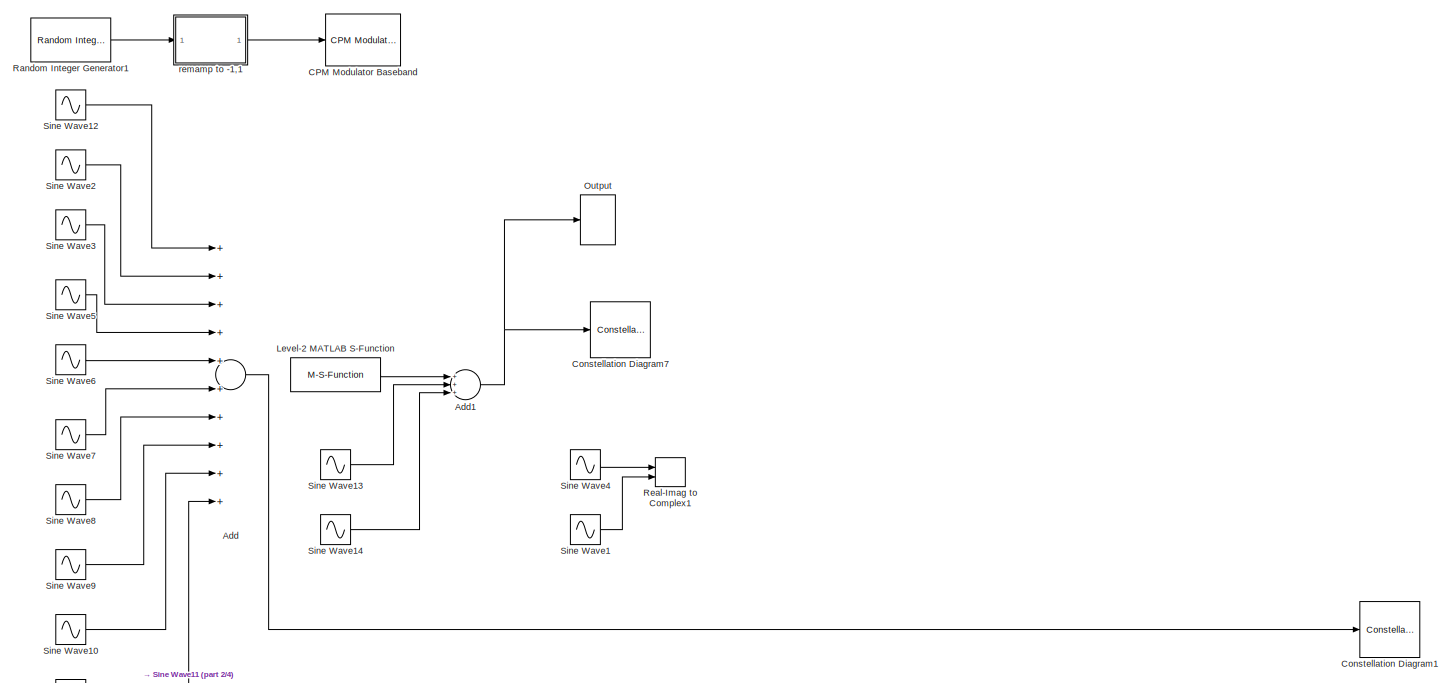
[diagram: root canvas - part 1/4, top center region]
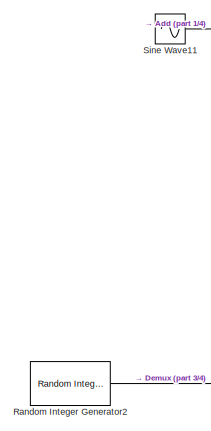
[diagram: root canvas - part 2/4, middle left region]
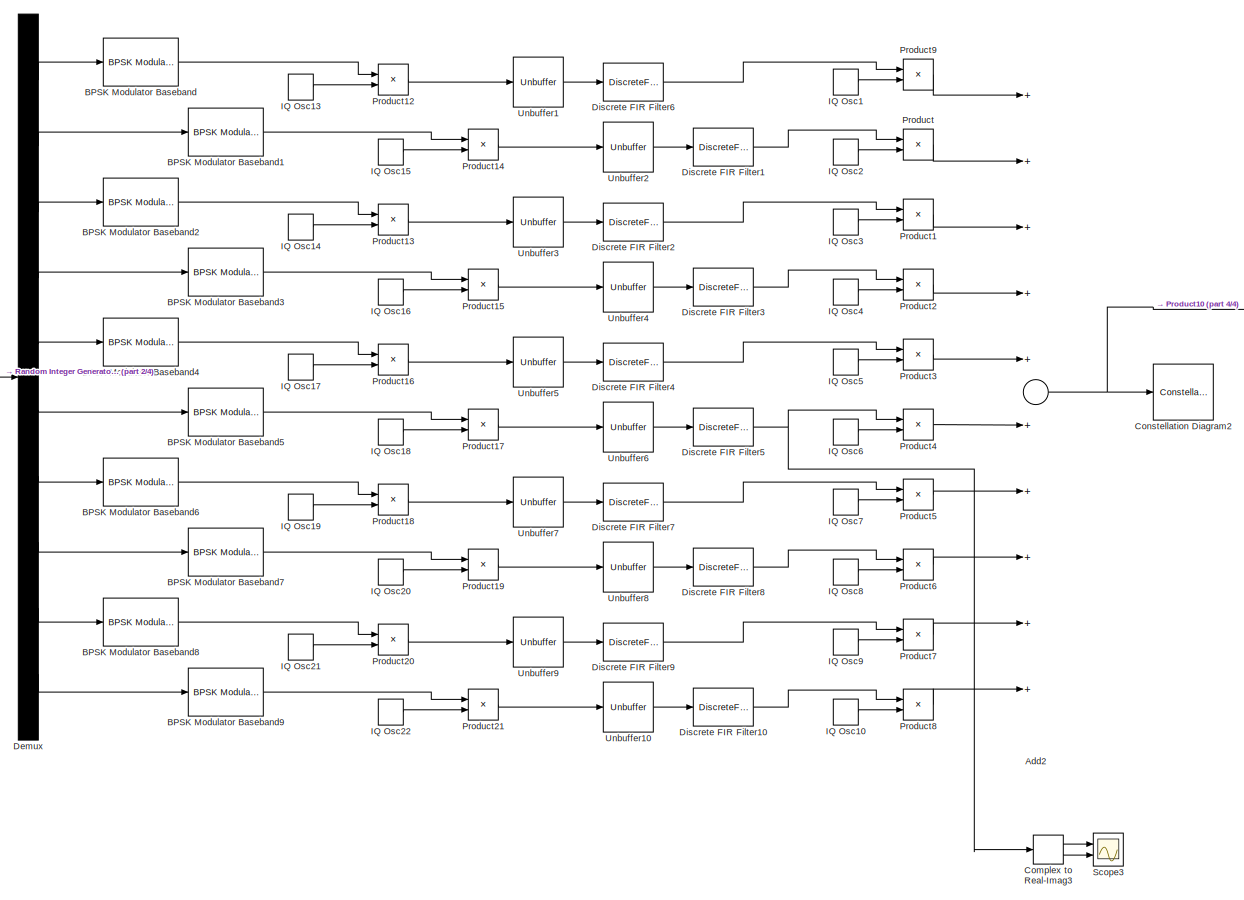
[diagram: root canvas - part 3/4, bottom center region]
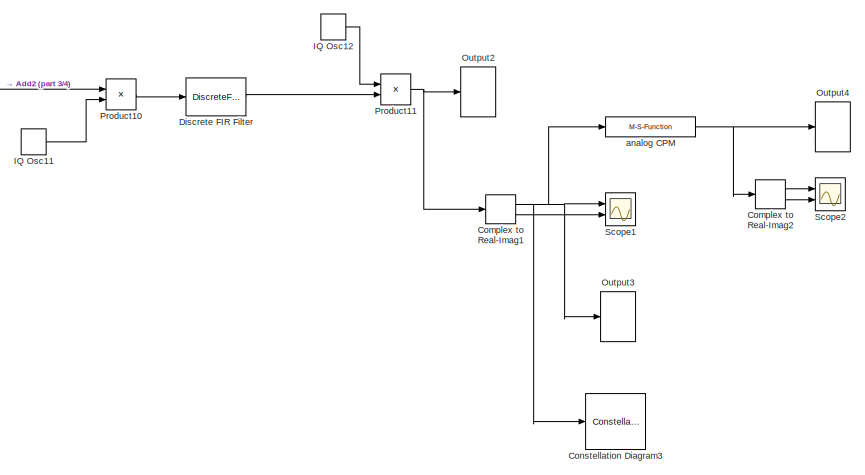
[diagram: root canvas - part 4/4, bottom right region]
MODEL slx_9e39d35eb57d
KIND model
BLOCK [Sum] Add
  InputSameDT = off
  Inputs = ++++++++++
  OutDataTypeStr = Inherit: Inherit via internal rule
  Ports = [10, 1]
  SaturateOnIntegerOverflow = off
BLOCK [Sum] Add1
  Commented = on
  InputSameDT = off
  Inputs = +++
  OutDataTypeStr = Inherit: Inherit via internal rule
  Ports = [3, 1]
  SaturateOnIntegerOverflow = off
BLOCK [Sum] Add2
  InputSameDT = off
  Inputs = ++++++++++
  OutDataTypeStr = Inherit: Inherit via internal rule
  Ports = [10, 1]
  SaturateOnIntegerOverflow = off
BLOCK [Reference] BPSK Modulator Baseband  REF=commdigbbndpm3/BPSK
Modulator
Baseband
  Ph = 0
  Ports = [1, 1]
  SourceBlock = commdigbbndpm3/BPSK\nModulator\nBaseband
  SourceType = BPSK Modulator Baseband
  outDtype = double
  outFracLen = 15
  outFracLenMode = Best precision
  outUDDataType = sfix(16)
  outWordLen = 16
BLOCK [Reference] BPSK Modulator Baseband1  REF=commdigbbndpm3/BPSK
Modulator
Baseband
  Ph = 0
  Ports = [1, 1]
  SourceBlock = commdigbbndpm3/BPSK\nModulator\nBaseband
  SourceType = BPSK Modulator Baseband
  outDtype = double
  outFracLen = 15
  outFracLenMode = Best precision
  outUDDataType = sfix(16)
  outWordLen = 16
BLOCK [Reference] BPSK Modulator Baseband2  REF=commdigbbndpm3/BPSK
Modulator
Baseband
  Ph = 0
  Ports = [1, 1]
  SourceBlock = commdigbbndpm3/BPSK\nModulator\nBaseband
  SourceType = BPSK Modulator Baseband
  outDtype = double
  outFracLen = 15
  outFracLenMode = Best precision
  outUDDataType = sfix(16)
  outWordLen = 16
BLOCK [Reference] BPSK Modulator Baseband3  REF=commdigbbndpm3/BPSK
Modulator
Baseband
  Ph = 0
  Ports = [1, 1]
  SourceBlock = commdigbbndpm3/BPSK\nModulator\nBaseband
  SourceType = BPSK Modulator Baseband
  outDtype = double
  outFracLen = 15
  outFracLenMode = Best precision
  outUDDataType = sfix(16)
  outWordLen = 16
BLOCK [Reference] BPSK Modulator Baseband4  REF=commdigbbndpm3/BPSK
Modulator
Baseband
  Ph = 0
  Ports = [1, 1]
  SourceBlock = commdigbbndpm3/BPSK\nModulator\nBaseband
  SourceType = BPSK Modulator Baseband
  outDtype = double
  outFracLen = 15
  outFracLenMode = Best precision
  outUDDataType = sfix(16)
  outWordLen = 16
BLOCK [Reference] BPSK Modulator Baseband5  REF=commdigbbndpm3/BPSK
Modulator
Baseband
  Ph = 0
  Ports = [1, 1]
  SourceBlock = commdigbbndpm3/BPSK\nModulator\nBaseband
  SourceType = BPSK Modulator Baseband
  outDtype = double
  outFracLen = 15
  outFracLenMode = Best precision
  outUDDataType = sfix(16)
  outWordLen = 16
BLOCK [Reference] BPSK Modulator Baseband6  REF=commdigbbndpm3/BPSK
Modulator
Baseband
  Ph = 0
  Ports = [1, 1]
  SourceBlock = commdigbbndpm3/BPSK\nModulator\nBaseband
  SourceType = BPSK Modulator Baseband
  outDtype = double
  outFracLen = 15
  outFracLenMode = Best precision
  outUDDataType = sfix(16)
  outWordLen = 16
BLOCK [Reference] BPSK Modulator Baseband7  REF=commdigbbndpm3/BPSK
Modulator
Baseband
  Ph = 0
  Ports = [1, 1]
  SourceBlock = commdigbbndpm3/BPSK\nModulator\nBaseband
  SourceType = BPSK Modulator Baseband
  outDtype = double
  outFracLen = 15
  outFracLenMode = Best precision
  outUDDataType = sfix(16)
  outWordLen = 16
BLOCK [Reference] BPSK Modulator Baseband8  REF=commdigbbndpm3/BPSK
Modulator
Baseband
  Ph = 0
  Ports = [1, 1]
  SourceBlock = commdigbbndpm3/BPSK\nModulator\nBaseband
  SourceType = BPSK Modulator Baseband
  outDtype = double
  outFracLen = 15
  outFracLenMode = Best precision
  outUDDataType = sfix(16)
  outWordLen = 16
BLOCK [Reference] BPSK Modulator Baseband9  REF=commdigbbndpm3/BPSK
Modulator
Baseband
  Ph = 0
  Ports = [1, 1]
  SourceBlock = commdigbbndpm3/BPSK\nModulator\nBaseband
  SourceType = BPSK Modulator Baseband
  outDtype = double
  outFracLen = 15
  outFracLenMode = Best precision
  outUDDataType = sfix(16)
  outWordLen = 16
BLOCK [Reference] CPM Modulator Baseband  REF=commdigbbndcpm2/CPM
Modulator
Baseband
  BT = 0.3
  Commented = on
  Mnum = 4
  Ports = [1, 1]
  RateOptions = Enforce single-rate processing
  SourceBlock = commdigbbndcpm2/CPM\nModulator\nBaseband
  SourceType = CPM Modulator Baseband
  UserDataPersistent = on
  inputType = Integer
  mainLobePulseLength = 1
  mappingType = Binary
  modIdx = 0.5
  outDataType = double
  phaseOffset = 0
  preHistory = 1
  pulseLength = 1
  pulseShape = Rectangular
  rollOff = 0.2
  samplesPerSymbol = 8
BLOCK [ComplexToRealImag] Complex to Real-Imag1
  Ports = [1, 2]
BLOCK [ComplexToRealImag] Complex to Real-Imag2
  Ports = [1, 2]
BLOCK [ComplexToRealImag] Complex to Real-Imag3
  Ports = [1, 2]
BLOCK [ConstellationDiagram] Constellation Diagram1
  Ports = [1]
  ScopeSpecificationString = comm.scopes.ConstellationDiagramBlockCfg('CurrentConfiguration', extmgr.ConfigurationSet(extmgr.Configuration('Core','General UI',true),extmgr.Configuration('Core','Source UI',true),extmgr.Configuration('Sources','WiredSimulink',true),extmgr.Configuration('Sources','Simulink',false),extmgr.Configuration('Sources','File',false),extmgr.Configuration('Sources','Workspace',false),extmgr.Configuration(...<+1764ch>  <repeated x4 — deduplicated; at blocks: Constellation Diagram1, Constellation Diagram2, Constellation Diagram3, Constellation Diagram7>
BLOCK [ConstellationDiagram] Constellation Diagram2
  Commented = on
  Ports = [1]
BLOCK [ConstellationDiagram] Constellation Diagram3
  Ports = [1]
BLOCK [ConstellationDiagram] Constellation Diagram7
  Commented = on
  Ports = [1]
BLOCK [Demux] Demux
  DisplayOption = bar
  Outputs = 10
  Ports = [1, 10]
BLOCK [DiscreteFir] Discrete FIR Filter
  Coefficients = 0.25*sinc(0.25*(-100:100))
  Ports = [1, 1]
BLOCK [DiscreteFir] Discrete FIR Filter1
  Coefficients = 0.05*sinc(0.05*(-100:100))
  Ports = [1, 1]
BLOCK [DiscreteFir] Discrete FIR Filter10
  Coefficients = 0.05*sinc(0.05*(-100:100))
  Ports = [1, 1]
BLOCK [DiscreteFir] Discrete FIR Filter2
  Coefficients = 0.05*sinc(0.05*(-100:100))
  Ports = [1, 1]
BLOCK [DiscreteFir] Discrete FIR Filter3
  Coefficients = 0.05*sinc(0.05*(-100:100))
  Ports = [1, 1]
BLOCK [DiscreteFir] Discrete FIR Filter4
  Coefficients = 0.05*sinc(0.05*(-100:100))
  Ports = [1, 1]
BLOCK [DiscreteFir] Discrete FIR Filter5
  Coefficients = 0.05*sinc(0.05*(-100:100))
  Ports = [1, 1]
BLOCK [DiscreteFir] Discrete FIR Filter6
  Coefficients = 0.05*sinc(0.05*(-100:100))
  Ports = [1, 1]
BLOCK [DiscreteFir] Discrete FIR Filter7
  Coefficients = 0.05*sinc(0.05*(-100:100))
  Ports = [1, 1]
BLOCK [DiscreteFir] Discrete FIR Filter8
  Coefficients = 0.05*sinc(0.05*(-100:100))
  Ports = [1, 1]
BLOCK [DiscreteFir] Discrete FIR Filter9
  Coefficients = 0.05*sinc(0.05*(-100:100))
  Ports = [1, 1]
BLOCK [M-S-Function] IQ Osc1
  FunctionName = complex_source
  Parameters = Freq, SampleTime
  Ports = [0, 1]
BLOCK [M-S-Function] IQ Osc10
  FunctionName = complex_source
  Parameters = Freq, SampleTime
  Ports = [0, 1]
BLOCK [M-S-Function] IQ Osc11
  FunctionName = complex_source
  Parameters = Freq, SampleTime
  Ports = [0, 1]
BLOCK [M-S-Function] IQ Osc12
  FunctionName = complex_source
  Parameters = Freq, SampleTime
  Ports = [0, 1]
BLOCK [M-S-Function] IQ Osc13
  FunctionName = complex_source
  Parameters = Freq, SampleTime
  Ports = [0, 1]
BLOCK [M-S-Function] IQ Osc14
  FunctionName = complex_source
  Parameters = Freq, SampleTime
  Ports = [0, 1]
BLOCK [M-S-Function] IQ Osc15
  FunctionName = complex_source
  Parameters = Freq, SampleTime
  Ports = [0, 1]
BLOCK [M-S-Function] IQ Osc16
  FunctionName = complex_source
  Parameters = Freq, SampleTime
  Ports = [0, 1]
BLOCK [M-S-Function] IQ Osc17
  FunctionName = complex_source
  Parameters = Freq, SampleTime
  Ports = [0, 1]
BLOCK [M-S-Function] IQ Osc18
  FunctionName = complex_source
  Parameters = Freq, SampleTime
  Ports = [0, 1]
BLOCK [M-S-Function] IQ Osc19
  FunctionName = complex_source
  Parameters = Freq, SampleTime
  Ports = [0, 1]
BLOCK [M-S-Function] IQ Osc2
  FunctionName = complex_source
  Parameters = Freq, SampleTime
  Ports = [0, 1]
BLOCK [M-S-Function] IQ Osc20
  FunctionName = complex_source
  Parameters = Freq, SampleTime
  Ports = [0, 1]
BLOCK [M-S-Function] IQ Osc21
  FunctionName = complex_source
  Parameters = Freq, SampleTime
  Ports = [0, 1]
BLOCK [M-S-Function] IQ Osc22
  FunctionName = complex_source
  Parameters = Freq, SampleTime
  Ports = [0, 1]
BLOCK [M-S-Function] IQ Osc3
  FunctionName = complex_source
  Parameters = Freq, SampleTime
  Ports = [0, 1]
BLOCK [M-S-Function] IQ Osc4
  FunctionName = complex_source
  Parameters = Freq, SampleTime
  Ports = [0, 1]
BLOCK [M-S-Function] IQ Osc5
  FunctionName = complex_source
  Parameters = Freq, SampleTime
  Ports = [0, 1]
BLOCK [M-S-Function] IQ Osc6
  FunctionName = complex_source
  Parameters = Freq, SampleTime
  Ports = [0, 1]
BLOCK [M-S-Function] IQ Osc7
  FunctionName = complex_source
  Parameters = Freq, SampleTime
  Ports = [0, 1]
BLOCK [M-S-Function] IQ Osc8
  FunctionName = complex_source
  Parameters = Freq, SampleTime
  Ports = [0, 1]
BLOCK [M-S-Function] IQ Osc9
  FunctionName = complex_source
  Parameters = Freq, SampleTime
  Ports = [0, 1]
BLOCK [M-S-Function] Level-2 MATLAB S-Function
  Commented = on
  FunctionName = mr_cpm_mod1
  Ports = [1, 1]
BLOCK [SpectrumAnalyzer] Output
  Commented = on
  Ports = [1]
  ScopeSpecificationString = spbscopes.SpectrumAnalyzerBlockCfg('CurrentConfiguration', extmgr.ConfigurationSet(extmgr.Configuration('Core','General UI',true,'DisplayFullSourceName',true,'FigureColor',[0.941176470588235 0.941176470588235 0.941176470588235]),extmgr.Configuration('Core','Source UI',true),extmgr.Configuration('Sources','WiredSimulink',true),extmgr.Configuration('Sources','Simulink',false),extmgr.Configuration('S...<+7397ch>
BLOCK [SpectrumAnalyzer] Output2
  Ports = [1]
  ScopeSpecificationString = spbscopes.SpectrumAnalyzerBlockCfg('CurrentConfiguration', extmgr.ConfigurationSet(extmgr.Configuration('Core','General UI',true,'DisplayFullSourceName',true,'FigureColor',[0.941176470588235 0.941176470588235 0.941176470588235]),extmgr.Configuration('Core','Source UI',true),extmgr.Configuration('Sources','WiredSimulink',true),extmgr.Configuration('Sources','Simulink',false),extmgr.Configuration('S...<+7408ch>
BLOCK [SpectrumAnalyzer] Output3
  Commented = on
  Ports = [1]
  ScopeSpecificationString = spbscopes.SpectrumAnalyzerBlockCfg('CurrentConfiguration', extmgr.ConfigurationSet(extmgr.Configuration('Core','General UI',true,'DisplayFullSourceName',true,'FigureColor',[0.941176470588235 0.941176470588235 0.941176470588235]),extmgr.Configuration('Core','Source UI',true),extmgr.Configuration('Sources','WiredSimulink',true),extmgr.Configuration('Sources','Simulink',false),extmgr.Configuration('S...<+7410ch>
BLOCK [SpectrumAnalyzer] Output4
  Ports = [1]
  ScopeSpecificationString = spbscopes.SpectrumAnalyzerBlockCfg('CurrentConfiguration', extmgr.ConfigurationSet(extmgr.Configuration('Core','General UI',true,'DisplayFullSourceName',true,'FigureColor',[0.941176470588235 0.941176470588235 0.941176470588235]),extmgr.Configuration('Core','Source UI',true),extmgr.Configuration('Sources','WiredSimulink',true),extmgr.Configuration('Sources','Simulink',false),extmgr.Configuration('S...<+7437ch>
BLOCK [Product] Product
  InputSameDT = off
  OutDataTypeStr = Inherit: Inherit via internal rule
  Ports = [2, 1]
  RndMeth = Floor
  SaturateOnIntegerOverflow = off
BLOCK [Product] Product1
  InputSameDT = off
  OutDataTypeStr = Inherit: Inherit via internal rule
  Ports = [2, 1]
  RndMeth = Floor
  SaturateOnIntegerOverflow = off
BLOCK [Product] Product10
  InputSameDT = off
  OutDataTypeStr = Inherit: Inherit via internal rule
  Ports = [2, 1]
  RndMeth = Floor
  SaturateOnIntegerOverflow = off
BLOCK [Product] Product11
  InputSameDT = off
  OutDataTypeStr = Inherit: Inherit via internal rule
  Ports = [2, 1]
  RndMeth = Floor
  SaturateOnIntegerOverflow = off
BLOCK [Product] Product12
  InputSameDT = off
  OutDataTypeStr = Inherit: Inherit via internal rule
  Ports = [2, 1]
  RndMeth = Floor
  SaturateOnIntegerOverflow = off
BLOCK [Product] Product13
  InputSameDT = off
  OutDataTypeStr = Inherit: Inherit via internal rule
  Ports = [2, 1]
  RndMeth = Floor
  SaturateOnIntegerOverflow = off
BLOCK [Product] Product14
  InputSameDT = off
  OutDataTypeStr = Inherit: Inherit via internal rule
  Ports = [2, 1]
  RndMeth = Floor
  SaturateOnIntegerOverflow = off
BLOCK [Product] Product15
  InputSameDT = off
  OutDataTypeStr = Inherit: Inherit via internal rule
  Ports = [2, 1]
  RndMeth = Floor
  SaturateOnIntegerOverflow = off
BLOCK [Product] Product16
  InputSameDT = off
  OutDataTypeStr = Inherit: Inherit via internal rule
  Ports = [2, 1]
  RndMeth = Floor
  SaturateOnIntegerOverflow = off
BLOCK [Product] Product17
  InputSameDT = off
  OutDataTypeStr = Inherit: Inherit via internal rule
  Ports = [2, 1]
  RndMeth = Floor
  SaturateOnIntegerOverflow = off
BLOCK [Product] Product18
  InputSameDT = off
  OutDataTypeStr = Inherit: Inherit via internal rule
  Ports = [2, 1]
  RndMeth = Floor
  SaturateOnIntegerOverflow = off
BLOCK [Product] Product19
  InputSameDT = off
  OutDataTypeStr = Inherit: Inherit via internal rule
  Ports = [2, 1]
  RndMeth = Floor
  SaturateOnIntegerOverflow = off
BLOCK [Product] Product2
  InputSameDT = off
  OutDataTypeStr = Inherit: Inherit via internal rule
  Ports = [2, 1]
  RndMeth = Floor
  SaturateOnIntegerOverflow = off
BLOCK [Product] Product20
  InputSameDT = off
  OutDataTypeStr = Inherit: Inherit via internal rule
  Ports = [2, 1]
  RndMeth = Floor
  SaturateOnIntegerOverflow = off
BLOCK [Product] Product21
  InputSameDT = off
  OutDataTypeStr = Inherit: Inherit via internal rule
  Ports = [2, 1]
  RndMeth = Floor
  SaturateOnIntegerOverflow = off
BLOCK [Product] Product3
  InputSameDT = off
  OutDataTypeStr = Inherit: Inherit via internal rule
  Ports = [2, 1]
  RndMeth = Floor
  SaturateOnIntegerOverflow = off
BLOCK [Product] Product4
  InputSameDT = off
  OutDataTypeStr = Inherit: Inherit via internal rule
  Ports = [2, 1]
  RndMeth = Floor
  SaturateOnIntegerOverflow = off
BLOCK [Product] Product5
  InputSameDT = off
  OutDataTypeStr = Inherit: Inherit via internal rule
  Ports = [2, 1]
  RndMeth = Floor
  SaturateOnIntegerOverflow = off
BLOCK [Product] Product6
  InputSameDT = off
  OutDataTypeStr = Inherit: Inherit via internal rule
  Ports = [2, 1]
  RndMeth = Floor
  SaturateOnIntegerOverflow = off
BLOCK [Product] Product7
  InputSameDT = off
  OutDataTypeStr = Inherit: Inherit via internal rule
  Ports = [2, 1]
  RndMeth = Floor
  SaturateOnIntegerOverflow = off
BLOCK [Product] Product8
  InputSameDT = off
  OutDataTypeStr = Inherit: Inherit via internal rule
  Ports = [2, 1]
  RndMeth = Floor
  SaturateOnIntegerOverflow = off
BLOCK [Product] Product9
  InputSameDT = off
  OutDataTypeStr = Inherit: Inherit via internal rule
  Ports = [2, 1]
  RndMeth = Floor
  SaturateOnIntegerOverflow = off
BLOCK [Reference] Random Integer Generator1  REF=commrandsrc2/Random Integer
Generator
  Commented = on
  Ports = [0, 1]
  SourceBlock = commrandsrc2/Random Integer\nGenerator
  SourceType = Random Integer Generator
  Ts = 1/(10000)
  frameBased = off
  mul = 2
  orient = off
  outDataType = double
  sampPerFrame = 1024
  seed = 42
BLOCK [Reference] Random Integer Generator2  REF=commrandsrc2/Random Integer
Generator
  Ports = [0, 1]
  SourceBlock = commrandsrc2/Random Integer\nGenerator
  SourceType = Random Integer Generator
  Ts = 1/(10000)
  frameBased = on
  mul = 2
  orient = off
  outDataType = double
  sampPerFrame = 10
  seed = 42
BLOCK [RealImagToComplex] Real-Imag to Complex1
  Commented = on
  Ports = [2, 1]
BLOCK [Scope] Scope1
  Floating = off
  NumInputPorts = 2
  Ports = [2]
  SaveName = ScopeData1
  ShowLegends = off
  YMax = 5~5
  YMin = -5~-5
  ZoomMode = xonly
BLOCK [Scope] Scope2
  Floating = off
  NumInputPorts = 2
  Ports = [2]
  SaveName = ScopeData2
  ShowLegends = off
  YMax = 5~5
  YMin = -5~-5
  ZoomMode = xonly
BLOCK [Scope] Scope3
  Floating = off
  NumInputPorts = 2
  Ports = [2]
  ShowLegends = off
  YMax = 5~5
  YMin = -5~-5
  ZoomMode = xonly
BLOCK [Sin] Sine Wave1
  Commented = on
  Frequency = 12.801*2*pi*1000
  Phase = -pi/2
  Ports = [0, 1]
  SampleTime = 1/128000
BLOCK [Sin] Sine Wave10
  Amplitude = 0.1
  Frequency = 98*2*pi
  Ports = [0, 1]
  SampleTime = 1/128000
BLOCK [Sin] Sine Wave11
  Amplitude = 0.1
  Frequency = 99*2*pi
  Ports = [0, 1]
  SampleTime = 1/128000
BLOCK [Sin] Sine Wave12
  Amplitude = 0.1
  Frequency = 100*2*pi
  Ports = [0, 1]
  SampleTime = 1/128000
BLOCK [Sin] Sine Wave13
  Commented = on
  Frequency = 10*2*pi
  Ports = [0, 1]
  SampleTime = 1/128000
BLOCK [Sin] Sine Wave14
  Commented = on
  Frequency = 20*2*pi
  Ports = [0, 1]
  SampleTime = 1/128000
BLOCK [Sin] Sine Wave2
  Amplitude = 0.1
  Frequency = 91*2*pi
  Ports = [0, 1]
  SampleTime = 1/128000
BLOCK [Sin] Sine Wave3
  Amplitude = 0.1
  Frequency = 92*2*pi
  Ports = [0, 1]
  SampleTime = 1/128000
BLOCK [Sin] Sine Wave4
  Commented = on
  Frequency = 12.801*2*pi*1000
  Ports = [0, 1]
  SampleTime = 1/128000
BLOCK [Sin] Sine Wave5
  Amplitude = 0.1
  Frequency = 93*2*pi
  Ports = [0, 1]
  SampleTime = 1/128000
BLOCK [Sin] Sine Wave6
  Amplitude = 0.1
  Frequency = 94*2*pi
  Ports = [0, 1]
  SampleTime = 1/128000
BLOCK [Sin] Sine Wave7
  Amplitude = 0.1
  Frequency = 95*2*pi
  Ports = [0, 1]
  SampleTime = 1/128000
BLOCK [Sin] Sine Wave8
  Amplitude = 0.1
  Frequency = 96*2*pi
  Ports = [0, 1]
  SampleTime = 1/128000
BLOCK [Sin] Sine Wave9
  Amplitude = 0.1
  Frequency = 97*2*pi
  Ports = [0, 1]
  SampleTime = 1/128000
BLOCK [Unbuffer] Unbuffer1
  Ports = [1, 1]
  SampleBasedProcessing = Same as frame based
BLOCK [Unbuffer] Unbuffer10
  Ports = [1, 1]
  SampleBasedProcessing = Same as frame based
BLOCK [Unbuffer] Unbuffer2
  Ports = [1, 1]
  SampleBasedProcessing = Same as frame based
BLOCK [Unbuffer] Unbuffer3
  Ports = [1, 1]
  SampleBasedProcessing = Same as frame based
BLOCK [Unbuffer] Unbuffer4
  Ports = [1, 1]
  SampleBasedProcessing = Same as frame based
BLOCK [Unbuffer] Unbuffer5
  Ports = [1, 1]
  SampleBasedProcessing = Same as frame based
BLOCK [Unbuffer] Unbuffer6
  Ports = [1, 1]
  SampleBasedProcessing = Same as frame based
BLOCK [Unbuffer] Unbuffer7
  Ports = [1, 1]
  SampleBasedProcessing = Same as frame based
BLOCK [Unbuffer] Unbuffer8
  Ports = [1, 1]
  SampleBasedProcessing = Same as frame based
BLOCK [Unbuffer] Unbuffer9
  Ports = [1, 1]
  SampleBasedProcessing = Same as frame based
BLOCK [M-S-Function] analog CPM
  FunctionName = mr_cpm_mod1
  Ports = [1, 1]
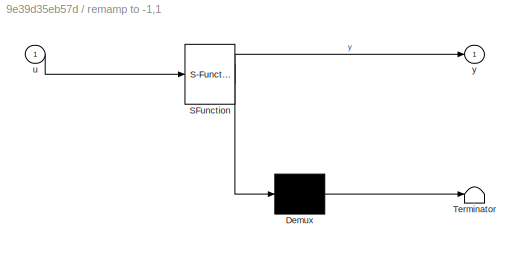
BLOCK [SubSystem] remamp to -1,1
  Commented = on
  ErrorFcn = Stateflow.Translate.translate
  PermitHierarchicalResolution = ExplicitOnly
  Ports = [1, 1]
  RequestExecContextInheritance = off
  SFBlockType = MATLAB Function
  TreatAsAtomicUnit = on
BLOCK [Demux] remamp to -1,1/ Demux 
  Outputs = 1
  Ports = [1, 1]
BLOCK [S-Function] remamp to -1,1/ SFunction 
  EnableBusSupport = on
  FunctionName = sf_sfun
  PortCounts = [1 2]
  Ports = [1, 2]
  Tag = Stateflow S-Function mr_cpm_test1 2
BLOCK [Terminator] remamp to -1,1/ Terminator 
BLOCK [Inport] remamp to -1,1/u
  IconDisplay = Port number
BLOCK [Outport] remamp to -1,1/y
  IconDisplay = Port number
NET Add1:1 -> Constellation Diagram7:1, Output:1
NET Add2:1 -> Constellation Diagram2:1, Product10:1
LINE Add:1 -> Constellation Diagram1:1
LINE BPSK Modulator Baseband1:1 -> Product14:1
LINE BPSK Modulator Baseband2:1 -> Product13:1
LINE BPSK Modulator Baseband3:1 -> Product15:1
LINE BPSK Modulator Baseband4:1 -> Product16:1
LINE BPSK Modulator Baseband5:1 -> Product17:1
LINE BPSK Modulator Baseband6:1 -> Product18:1
LINE BPSK Modulator Baseband7:1 -> Product19:1
LINE BPSK Modulator Baseband8:1 -> Product20:1
LINE BPSK Modulator Baseband9:1 -> Product21:1
LINE BPSK Modulator Baseband:1 -> Product12:1
NET Complex to Real-Imag1:1 -> Constellation Diagram3:1, Output3:1, Scope1:1, analog CPM:1
LINE Complex to Real-Imag1:2 -> Scope1:2
LINE Complex to Real-Imag2:1 -> Scope2:1
LINE Complex to Real-Imag2:2 -> Scope2:2
LINE Complex to Real-Imag3:1 -> Scope3:1
LINE Complex to Real-Imag3:2 -> Scope3:2
LINE Demux:1 -> BPSK Modulator Baseband:1
LINE Demux:10 -> BPSK Modulator Baseband9:1
LINE Demux:2 -> BPSK Modulator Baseband1:1
LINE Demux:3 -> BPSK Modulator Baseband2:1
LINE Demux:4 -> BPSK Modulator Baseband3:1
LINE Demux:5 -> BPSK Modulator Baseband4:1
LINE Demux:6 -> BPSK Modulator Baseband5:1
LINE Demux:7 -> BPSK Modulator Baseband6:1
LINE Demux:8 -> BPSK Modulator Baseband7:1
LINE Demux:9 -> BPSK Modulator Baseband8:1
LINE Discrete FIR Filter10:1 -> Product8:1
LINE Discrete FIR Filter1:1 -> Product:1
LINE Discrete FIR Filter2:1 -> Product1:1
LINE Discrete FIR Filter3:1 -> Product2:1
LINE Discrete FIR Filter4:1 -> Product3:1
NET Discrete FIR Filter5:1 -> Complex to Real-Imag3:1, Product4:1
LINE Discrete FIR Filter6:1 -> Product9:1
LINE Discrete FIR Filter7:1 -> Product5:1
LINE Discrete FIR Filter8:1 -> Product6:1
LINE Discrete FIR Filter9:1 -> Product7:1
LINE Discrete FIR Filter:1 -> Product11:2
LINE IQ Osc10:1 -> Product8:2
LINE IQ Osc11:1 -> Product10:2
LINE IQ Osc12:1 -> Product11:1
LINE IQ Osc13:1 -> Product12:2
LINE IQ Osc14:1 -> Product13:2
LINE IQ Osc15:1 -> Product14:2
LINE IQ Osc16:1 -> Product15:2
LINE IQ Osc17:1 -> Product16:2
LINE IQ Osc18:1 -> Product17:2
LINE IQ Osc19:1 -> Product18:2
LINE IQ Osc1:1 -> Product9:2
LINE IQ Osc20:1 -> Product19:2
LINE IQ Osc21:1 -> Product20:2
LINE IQ Osc22:1 -> Product21:2
LINE IQ Osc2:1 -> Product:2
LINE IQ Osc3:1 -> Product1:2
LINE IQ Osc4:1 -> Product2:2
LINE IQ Osc5:1 -> Product3:2
LINE IQ Osc6:1 -> Product4:2
LINE IQ Osc7:1 -> Product5:2
LINE IQ Osc8:1 -> Product6:2
LINE IQ Osc9:1 -> Product7:2
LINE Level-2 MATLAB S-Function:1 -> Add1:1
LINE Product10:1 -> Discrete FIR Filter:1
NET Product11:1 -> Complex to Real-Imag1:1, Output2:1
LINE Product12:1 -> Unbuffer1:1
LINE Product13:1 -> Unbuffer3:1
LINE Product14:1 -> Unbuffer2:1
LINE Product15:1 -> Unbuffer4:1
LINE Product16:1 -> Unbuffer5:1
LINE Product17:1 -> Unbuffer6:1
LINE Product18:1 -> Unbuffer7:1
LINE Product19:1 -> Unbuffer8:1
LINE Product1:1 -> Add2:3
LINE Product20:1 -> Unbuffer9:1
LINE Product21:1 -> Unbuffer10:1
LINE Product2:1 -> Add2:4
LINE Product3:1 -> Add2:5
LINE Product4:1 -> Add2:6
LINE Product5:1 -> Add2:7
LINE Product6:1 -> Add2:8
LINE Product7:1 -> Add2:9
LINE Product8:1 -> Add2:10
LINE Product9:1 -> Add2:1
LINE Product:1 -> Add2:2
LINE Random Integer Generator1:1 -> remamp to -1,1:1
LINE Random Integer Generator2:1 -> Demux:1
LINE Sine Wave10:1 -> Add:9
LINE Sine Wave11:1 -> Add:10
LINE Sine Wave12:1 -> Add:1
LINE Sine Wave13:1 -> Add1:2
LINE Sine Wave14:1 -> Add1:3
LINE Sine Wave1:1 -> Real-Imag to Complex1:2
LINE Sine Wave2:1 -> Add:2
LINE Sine Wave3:1 -> Add:3
LINE Sine Wave4:1 -> Real-Imag to Complex1:1
LINE Sine Wave5:1 -> Add:4
LINE Sine Wave6:1 -> Add:5
LINE Sine Wave7:1 -> Add:6
LINE Sine Wave8:1 -> Add:7
LINE Sine Wave9:1 -> Add:8
LINE Unbuffer10:1 -> Discrete FIR Filter10:1
LINE Unbuffer1:1 -> Discrete FIR Filter6:1
LINE Unbuffer2:1 -> Discrete FIR Filter1:1
LINE Unbuffer3:1 -> Discrete FIR Filter2:1
LINE Unbuffer4:1 -> Discrete FIR Filter3:1
LINE Unbuffer5:1 -> Discrete FIR Filter4:1
LINE Unbuffer6:1 -> Discrete FIR Filter5:1
LINE Unbuffer7:1 -> Discrete FIR Filter7:1
LINE Unbuffer8:1 -> Discrete FIR Filter8:1
LINE Unbuffer9:1 -> Discrete FIR Filter9:1
NET analog CPM:1 -> Complex to Real-Imag2:1, Output4:1
LINE remamp to -1,1:1 -> CPM Modulator Baseband:1
note: NET lines group one-source signal fan-out (src -> all destinations, sorted); 1:1 wires keep LINE
CHART remamp to -1,1 states=1 transitions=1
  STATE_LABEL 'eML_blk_kernel()'
  STATE_LABEL 'SCRIPT:\nfunction y = fcn(u)\n%#codegen\n\ny = (u*2)-1;'
